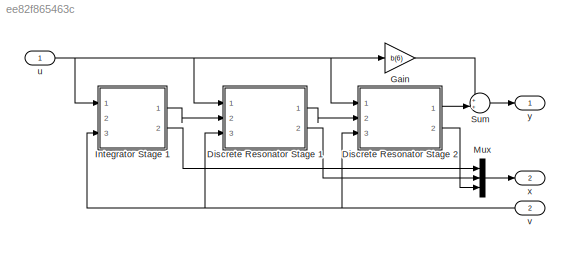
MODEL slx_ee82f865463c
KIND model
CONFIG AbsTol = auto
CONFIG EnableMultiTasking = off
CONFIG FixedStep = auto
CONFIG MaxStep = auto
CONFIG MinStep = auto
CONFIG RelTol = 1e-3
CONFIG SampleTimeConstraint = Unconstrained
CONFIG Solver = FixedStepAuto
CONFIG SolverName = FixedStepAuto
CONFIG StartTime = 0.0
CONFIG StopTime = 10.0
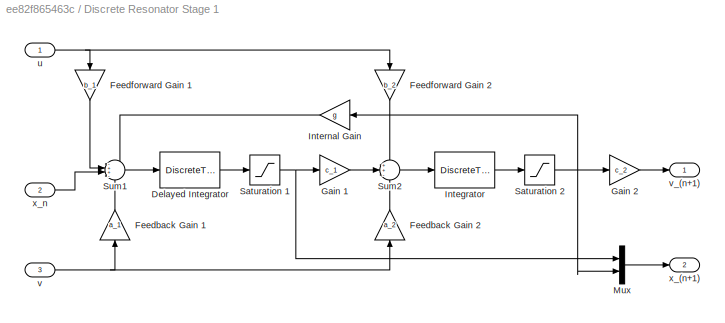
BLOCK [SubSystem] Discrete Resonator Stage 1
  Ports = [3, 2]
  RequestExecContextInheritance = off
  Variant = off
BLOCK [DiscreteTransferFcn] Discrete Resonator Stage 1/Delayed Integrator
  Denominator = [1 -1]
  InputPortMap = u0
  Numerator = [1 0]
  Ports = [1, 1]
  SampleTime = t_s
BLOCK [Gain] Discrete Resonator Stage 1/Feedback Gain 1
  Gain = a_1
  OutDataTypeStr = Inherit: Inherit via internal rule
  ParamDataTypeStr = Inherit: Inherit via internal rule
  SaturateOnIntegerOverflow = off
BLOCK [Gain] Discrete Resonator Stage 1/Feedback Gain 2
  Gain = a_2
  OutDataTypeStr = Inherit: Inherit via internal rule
  ParamDataTypeStr = Inherit: Inherit via internal rule
  SaturateOnIntegerOverflow = off
BLOCK [Gain] Discrete Resonator Stage 1/Feedforward Gain 1
  Gain = b_1
  OutDataTypeStr = Inherit: Inherit via internal rule
  ParamDataTypeStr = Inherit: Inherit via internal rule
  SaturateOnIntegerOverflow = off
BLOCK [Gain] Discrete Resonator Stage 1/Feedforward Gain 2
  Gain = b_2
  OutDataTypeStr = Inherit: Inherit via internal rule
  ParamDataTypeStr = Inherit: Inherit via internal rule
  SaturateOnIntegerOverflow = off
BLOCK [Gain] Discrete Resonator Stage 1/Gain 1
  Gain = c_1
  OutDataTypeStr = Inherit: Inherit via internal rule
  ParamDataTypeStr = Inherit: Inherit via internal rule
  SaturateOnIntegerOverflow = off
BLOCK [Gain] Discrete Resonator Stage 1/Gain 2
  Gain = c_2
  OutDataTypeStr = Inherit: Inherit via internal rule
  ParamDataTypeStr = Inherit: Inherit via internal rule
  SaturateOnIntegerOverflow = off
BLOCK [DiscreteTransferFcn] Discrete Resonator Stage 1/Integrator
  Denominator = [1 -1]
  InputPortMap = u0
  Ports = [1, 1]
  SampleTime = t_s
BLOCK [Gain] Discrete Resonator Stage 1/Internal Gain
  Gain = g
  OutDataTypeStr = Inherit: Inherit via internal rule
  ParamDataTypeStr = Inherit: Inherit via internal rule
  SaturateOnIntegerOverflow = off
BLOCK [Mux] Discrete Resonator Stage 1/Mux
  DisplayOption = bar
  Inputs = 2
  Ports = [2, 1]
BLOCK [Saturate] Discrete Resonator Stage 1/Saturation 1
  InputPortMap = u0
  LowerLimit = sat_l
  Ports = [1, 1]
  UpperLimit = sat_u
BLOCK [Saturate] Discrete Resonator Stage 1/Saturation 2
  InputPortMap = u0
  LowerLimit = sat_l
  Ports = [1, 1]
  UpperLimit = sat_u
BLOCK [Sum] Discrete Resonator Stage 1/Sum1
  IconShape = round
  InputSameDT = off
  Inputs = -++-
  OutDataTypeStr = Inherit: Inherit via internal rule
  Ports = [4, 1]
  SaturateOnIntegerOverflow = off
BLOCK [Sum] Discrete Resonator Stage 1/Sum2
  IconShape = round
  InputSameDT = off
  Inputs = ++-
  OutDataTypeStr = Inherit: Inherit via internal rule
  Ports = [3, 1]
  SaturateOnIntegerOverflow = off
BLOCK [Inport] Discrete Resonator Stage 1/u
  IconDisplay = Port number
BLOCK [Inport] Discrete Resonator Stage 1/v
  IconDisplay = Port number
  Port = 3
BLOCK [Outport] Discrete Resonator Stage 1/v_(n+1)
  IconDisplay = Port number
BLOCK [Outport] Discrete Resonator Stage 1/x_(n+1)
  IconDisplay = Port number
  Port = 2
BLOCK [Inport] Discrete Resonator Stage 1/x_n
  IconDisplay = Port number
  Port = 2
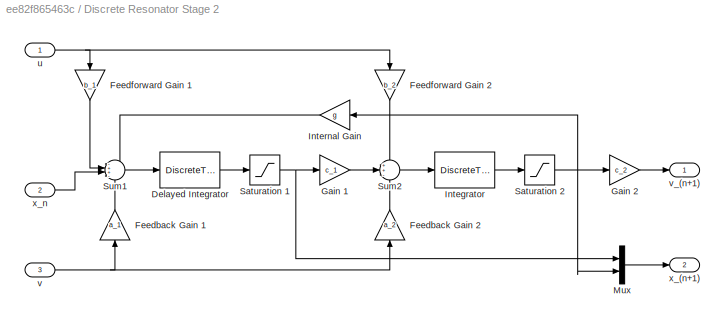
BLOCK [SubSystem] Discrete Resonator Stage 2
  Ports = [3, 2]
  RequestExecContextInheritance = off
  Variant = off
BLOCK [DiscreteTransferFcn] Discrete Resonator Stage 2/Delayed Integrator
  Denominator = [1 -1]
  InputPortMap = u0
  Numerator = [1 0]
  Ports = [1, 1]
  SampleTime = t_s
BLOCK [Gain] Discrete Resonator Stage 2/Feedback Gain 1
  Gain = a_1
  OutDataTypeStr = Inherit: Inherit via internal rule
  ParamDataTypeStr = Inherit: Inherit via internal rule
  SaturateOnIntegerOverflow = off
BLOCK [Gain] Discrete Resonator Stage 2/Feedback Gain 2
  Gain = a_2
  OutDataTypeStr = Inherit: Inherit via internal rule
  ParamDataTypeStr = Inherit: Inherit via internal rule
  SaturateOnIntegerOverflow = off
BLOCK [Gain] Discrete Resonator Stage 2/Feedforward Gain 1
  Gain = b_1
  OutDataTypeStr = Inherit: Inherit via internal rule
  ParamDataTypeStr = Inherit: Inherit via internal rule
  SaturateOnIntegerOverflow = off
BLOCK [Gain] Discrete Resonator Stage 2/Feedforward Gain 2
  Gain = b_2
  OutDataTypeStr = Inherit: Inherit via internal rule
  ParamDataTypeStr = Inherit: Inherit via internal rule
  SaturateOnIntegerOverflow = off
BLOCK [Gain] Discrete Resonator Stage 2/Gain 1
  Gain = c_1
  OutDataTypeStr = Inherit: Inherit via internal rule
  ParamDataTypeStr = Inherit: Inherit via internal rule
  SaturateOnIntegerOverflow = off
BLOCK [Gain] Discrete Resonator Stage 2/Gain 2
  Gain = c_2
  OutDataTypeStr = Inherit: Inherit via internal rule
  ParamDataTypeStr = Inherit: Inherit via internal rule
  SaturateOnIntegerOverflow = off
BLOCK [DiscreteTransferFcn] Discrete Resonator Stage 2/Integrator
  Denominator = [1 -1]
  InputPortMap = u0
  Ports = [1, 1]
  SampleTime = t_s
BLOCK [Gain] Discrete Resonator Stage 2/Internal Gain
  Gain = g
  OutDataTypeStr = Inherit: Inherit via internal rule
  ParamDataTypeStr = Inherit: Inherit via internal rule
  SaturateOnIntegerOverflow = off
BLOCK [Mux] Discrete Resonator Stage 2/Mux
  DisplayOption = bar
  Inputs = 2
  Ports = [2, 1]
BLOCK [Saturate] Discrete Resonator Stage 2/Saturation 1
  InputPortMap = u0
  LowerLimit = sat_l
  Ports = [1, 1]
  UpperLimit = sat_u
BLOCK [Saturate] Discrete Resonator Stage 2/Saturation 2
  InputPortMap = u0
  LowerLimit = sat_l
  Ports = [1, 1]
  UpperLimit = sat_u
BLOCK [Sum] Discrete Resonator Stage 2/Sum1
  IconShape = round
  InputSameDT = off
  Inputs = -++-
  OutDataTypeStr = Inherit: Inherit via internal rule
  Ports = [4, 1]
  SaturateOnIntegerOverflow = off
BLOCK [Sum] Discrete Resonator Stage 2/Sum2
  IconShape = round
  InputSameDT = off
  Inputs = ++-
  OutDataTypeStr = Inherit: Inherit via internal rule
  Ports = [3, 1]
  SaturateOnIntegerOverflow = off
BLOCK [Inport] Discrete Resonator Stage 2/u
  IconDisplay = Port number
BLOCK [Inport] Discrete Resonator Stage 2/v
  IconDisplay = Port number
  Port = 3
BLOCK [Outport] Discrete Resonator Stage 2/v_(n+1)
  IconDisplay = Port number
BLOCK [Outport] Discrete Resonator Stage 2/x_(n+1)
  IconDisplay = Port number
  Port = 2
BLOCK [Inport] Discrete Resonator Stage 2/x_n
  IconDisplay = Port number
  Port = 2
BLOCK [Gain] Gain
  Gain = b(6)
  OutDataTypeStr = Inherit: Inherit via internal rule
  ParamDataTypeStr = Inherit: Inherit via internal rule
  SaturateOnIntegerOverflow = off
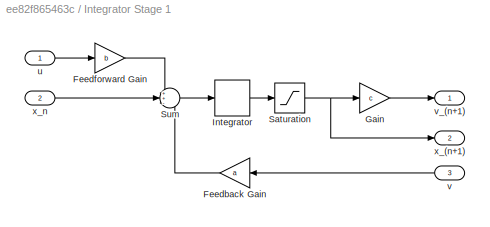
BLOCK [SubSystem] Integrator Stage 1
  Ports = [3, 2]
  RequestExecContextInheritance = off
  Variant = off
BLOCK [Gain] Integrator Stage 1/Feedback Gain
  Gain = a
  OutDataTypeStr = Inherit: Inherit via internal rule
  ParamDataTypeStr = Inherit: Inherit via internal rule
  SaturateOnIntegerOverflow = off
BLOCK [Gain] Integrator Stage 1/Feedforward Gain
  Gain = b
  OutDataTypeStr = Inherit: Inherit via internal rule
  ParamDataTypeStr = Inherit: Inherit via internal rule
  SaturateOnIntegerOverflow = off
BLOCK [Gain] Integrator Stage 1/Gain
  Gain = c
  OutDataTypeStr = Inherit: Inherit via internal rule
  ParamDataTypeStr = Inherit: Inherit via internal rule
  SaturateOnIntegerOverflow = off
BLOCK [DiscreteIntegrator] Integrator Stage 1/Integrator
  ICPrevOutput = DiscIntNeverNeededParam
  ICPrevScaledInput = DiscIntNeverNeededParam
  InitialConditionSetting = State (most efficient)
  LimitOutput = on
  LowerSaturationLimit = -Inf
  Ports = [1, 1]
  SampleTime = t_s
  UpperSaturationLimit = Inf
BLOCK [Saturate] Integrator Stage 1/Saturation
  InputPortMap = u0
  LowerLimit = sat_l
  Ports = [1, 1]
  UpperLimit = sat_u
BLOCK [Sum] Integrator Stage 1/Sum
  IconShape = round
  InputSameDT = off
  Inputs = ++-
  OutDataTypeStr = Inherit: Inherit via internal rule
  Ports = [3, 1]
  SaturateOnIntegerOverflow = off
BLOCK [Inport] Integrator Stage 1/u
  IconDisplay = Port number
BLOCK [Inport] Integrator Stage 1/v
  IconDisplay = Port number
  Port = 3
BLOCK [Outport] Integrator Stage 1/v_(n+1)
  IconDisplay = Port number
BLOCK [Outport] Integrator Stage 1/x_(n+1)
  IconDisplay = Port number
  Port = 2
BLOCK [Inport] Integrator Stage 1/x_n
  IconDisplay = Port number
  Port = 2
BLOCK [Mux] Mux
  DisplayOption = bar
  Inputs = 3
  Ports = [3, 1]
BLOCK [Sum] Sum
  IconShape = round
  InputSameDT = off
  Inputs = ++|
  OutDataTypeStr = Inherit: Inherit via internal rule
  Ports = [2, 1]
  SaturateOnIntegerOverflow = off
BLOCK [Inport] u
  IconDisplay = Port number
BLOCK [Inport] v
  IconDisplay = Port number
  Port = 2
BLOCK [Outport] x
  IconDisplay = Port number
  Port = 2
BLOCK [Outport] y
  IconDisplay = Port number
LINE Discrete Resonator Stage 1/Delayed Integrator:1 -> Discrete Resonator Stage 1/Saturation 1:1
LINE Discrete Resonator Stage 1/Feedback Gain 1:1 -> Discrete Resonator Stage 1/Sum1:4
LINE Discrete Resonator Stage 1/Feedback Gain 2:1 -> Discrete Resonator Stage 1/Sum2:3
LINE Discrete Resonator Stage 1/Feedforward Gain 1:1 -> Discrete Resonator Stage 1/Sum1:2
LINE Discrete Resonator Stage 1/Feedforward Gain 2:1 -> Discrete Resonator Stage 1/Sum2:1
LINE Discrete Resonator Stage 1/Gain 1:1 -> Discrete Resonator Stage 1/Sum2:2
LINE Discrete Resonator Stage 1/Gain 2:1 -> Discrete Resonator Stage 1/v_(n+1):1
LINE Discrete Resonator Stage 1/Integrator:1 -> Discrete Resonator Stage 1/Saturation 2:1
LINE Discrete Resonator Stage 1/Internal Gain:1 -> Discrete Resonator Stage 1/Sum1:1
LINE Discrete Resonator Stage 1/Mux:1 -> Discrete Resonator Stage 1/x_(n+1):1
NET Discrete Resonator Stage 1/Saturation 1:1 -> Discrete Resonator Stage 1/Gain 1:1, Discrete Resonator Stage 1/Mux:1
NET Discrete Resonator Stage 1/Saturation 2:1 -> Discrete Resonator Stage 1/Gain 2:1, Discrete Resonator Stage 1/Internal Gain:1, Discrete Resonator Stage 1/Mux:2
LINE Discrete Resonator Stage 1/Sum1:1 -> Discrete Resonator Stage 1/Delayed Integrator:1
LINE Discrete Resonator Stage 1/Sum2:1 -> Discrete Resonator Stage 1/Integrator:1
NET Discrete Resonator Stage 1/u:1 -> Discrete Resonator Stage 1/Feedforward Gain 1:1, Discrete Resonator Stage 1/Feedforward Gain 2:1
NET Discrete Resonator Stage 1/v:1 -> Discrete Resonator Stage 1/Feedback Gain 1:1, Discrete Resonator Stage 1/Feedback Gain 2:1
LINE Discrete Resonator Stage 1/x_n:1 -> Discrete Resonator Stage 1/Sum1:3
LINE Discrete Resonator Stage 1:1 -> Discrete Resonator Stage 2:2
LINE Discrete Resonator Stage 1:2 -> Mux:2
LINE Discrete Resonator Stage 2/Delayed Integrator:1 -> Discrete Resonator Stage 2/Saturation 1:1
LINE Discrete Resonator Stage 2/Feedback Gain 1:1 -> Discrete Resonator Stage 2/Sum1:4
LINE Discrete Resonator Stage 2/Feedback Gain 2:1 -> Discrete Resonator Stage 2/Sum2:3
LINE Discrete Resonator Stage 2/Feedforward Gain 1:1 -> Discrete Resonator Stage 2/Sum1:2
LINE Discrete Resonator Stage 2/Feedforward Gain 2:1 -> Discrete Resonator Stage 2/Sum2:1
LINE Discrete Resonator Stage 2/Gain 1:1 -> Discrete Resonator Stage 2/Sum2:2
LINE Discrete Resonator Stage 2/Gain 2:1 -> Discrete Resonator Stage 2/v_(n+1):1
LINE Discrete Resonator Stage 2/Integrator:1 -> Discrete Resonator Stage 2/Saturation 2:1
LINE Discrete Resonator Stage 2/Internal Gain:1 -> Discrete Resonator Stage 2/Sum1:1
LINE Discrete Resonator Stage 2/Mux:1 -> Discrete Resonator Stage 2/x_(n+1):1
NET Discrete Resonator Stage 2/Saturation 1:1 -> Discrete Resonator Stage 2/Gain 1:1, Discrete Resonator Stage 2/Mux:1
NET Discrete Resonator Stage 2/Saturation 2:1 -> Discrete Resonator Stage 2/Gain 2:1, Discrete Resonator Stage 2/Internal Gain:1, Discrete Resonator Stage 2/Mux:2
LINE Discrete Resonator Stage 2/Sum1:1 -> Discrete Resonator Stage 2/Delayed Integrator:1
LINE Discrete Resonator Stage 2/Sum2:1 -> Discrete Resonator Stage 2/Integrator:1
NET Discrete Resonator Stage 2/u:1 -> Discrete Resonator Stage 2/Feedforward Gain 1:1, Discrete Resonator Stage 2/Feedforward Gain 2:1
NET Discrete Resonator Stage 2/v:1 -> Discrete Resonator Stage 2/Feedback Gain 1:1, Discrete Resonator Stage 2/Feedback Gain 2:1
LINE Discrete Resonator Stage 2/x_n:1 -> Discrete Resonator Stage 2/Sum1:3
LINE Discrete Resonator Stage 2:1 -> Sum:2
LINE Discrete Resonator Stage 2:2 -> Mux:3
LINE Gain:1 -> Sum:1
LINE Integrator Stage 1/Feedback Gain:1 -> Integrator Stage 1/Sum:3
LINE Integrator Stage 1/Feedforward Gain:1 -> Integrator Stage 1/Sum:1
LINE Integrator Stage 1/Gain:1 -> Integrator Stage 1/v_(n+1):1
LINE Integrator Stage 1/Integrator:1 -> Integrator Stage 1/Saturation:1
NET Integrator Stage 1/Saturation:1 -> Integrator Stage 1/Gain:1, Integrator Stage 1/x_(n+1):1
LINE Integrator Stage 1/Sum:1 -> Integrator Stage 1/Integrator:1
LINE Integrator Stage 1/u:1 -> Integrator Stage 1/Feedforward Gain:1
LINE Integrator Stage 1/v:1 -> Integrator Stage 1/Feedback Gain:1
LINE Integrator Stage 1/x_n:1 -> Integrator Stage 1/Sum:2
LINE Integrator Stage 1:1 -> Discrete Resonator Stage 1:2
LINE Integrator Stage 1:2 -> Mux:1
LINE Mux:1 -> x:1
LINE Sum:1 -> y:1
NET u:1 -> Discrete Resonator Stage 1:1, Discrete Resonator Stage 2:1, Gain:1, Integrator Stage 1:1
NET v:1 -> Discrete Resonator Stage 1:3, Discrete Resonator Stage 2:3, Integrator Stage 1:3
note: NET lines group one-source signal fan-out (src -> all destinations, sorted); 1:1 wires keep LINE
